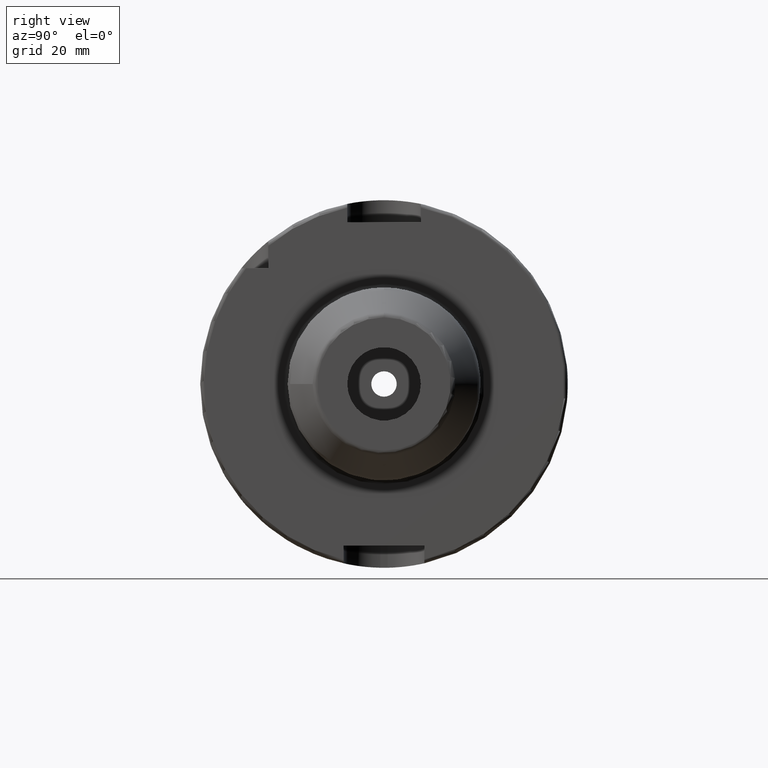
[diagram: clean part render]
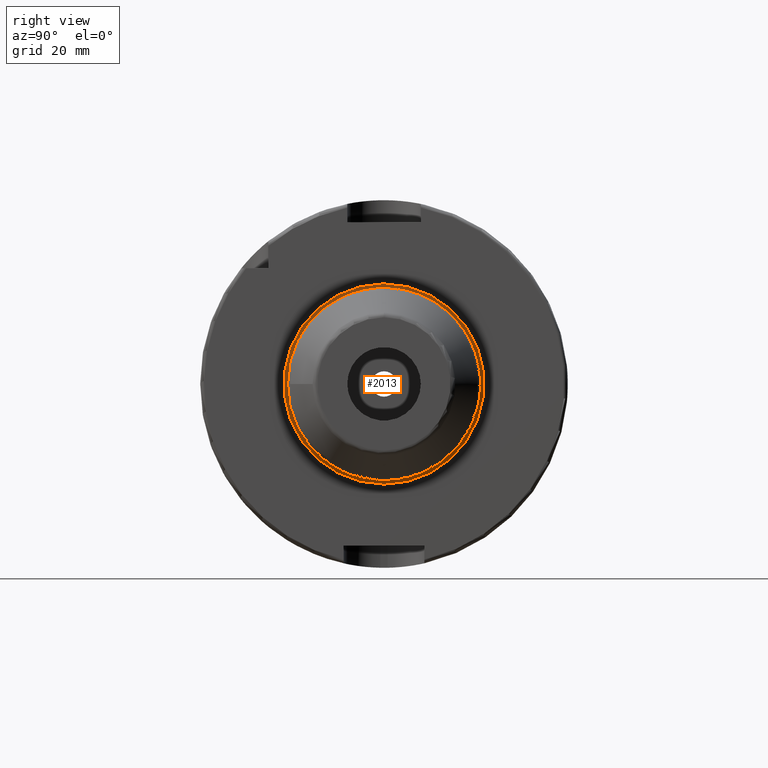
[diagram: same view with one face highlighted and labeled with its STEP entity id]
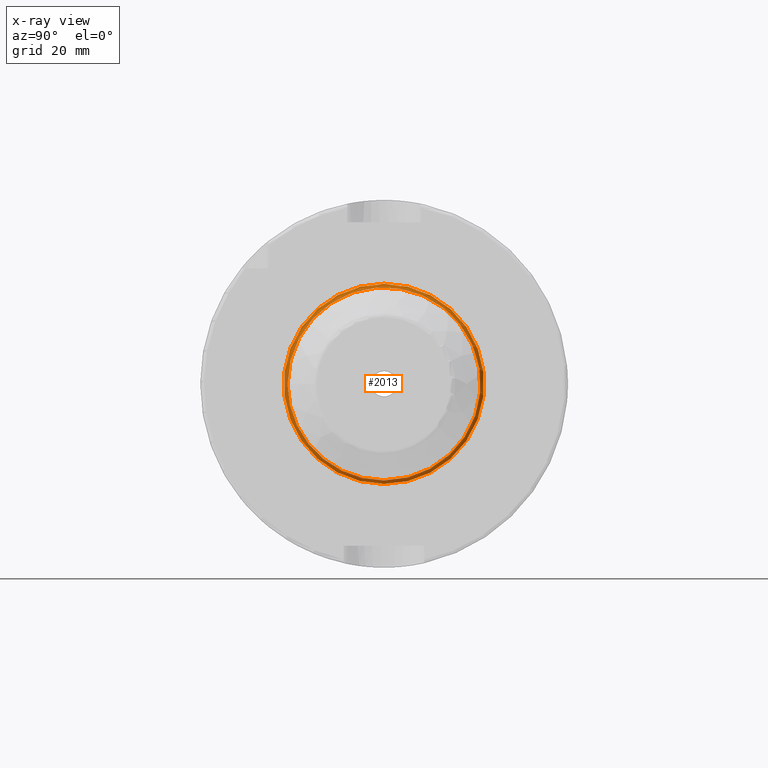
[diagram: x-ray of the same camera — body ghosted, the highlighted face saturated]
A machine part, right view. The second image highlights one B-rep face of the part: STEP entity #2013.
The next image is the same camera in x-ray: the body ghosted, the highlighted face saturated — about 8% of this face is hidden behind the body in this view.
In plain terms, the highlighted toroidal blend (fillet) surface has major radius 27.25 mm and minor (blend) radius 1 mm.
Its self-contained STEP definition (entity closure, byte-faithful):
#162=TOROIDAL_SURFACE('',#2171,27.25,1.);
#192=FACE_OUTER_BOUND('',#315,.T.);
#315=EDGE_LOOP('',(#1353,#1354,#1355,#1356,#1357));
#672=CIRCLE('',#2172,26.25);
#673=CIRCLE('',#2173,1.);
#674=CIRCLE('',#2174,27.25);
#675=CIRCLE('',#2175,26.25);
#807=VERTEX_POINT('',#3093);
#808=VERTEX_POINT('',#3094);
#809=VERTEX_POINT('',#3096);
#1019=EDGE_CURVE('',#807,#808,#672,.T.);
#1020=EDGE_CURVE('',#808,#809,#673,.T.);
#1021=EDGE_CURVE('',#809,#809,#674,.T.);
#1022=EDGE_CURVE('',#808,#807,#675,.T.);
#1353=ORIENTED_EDGE('',*,*,#1019,.T.);
#1354=ORIENTED_EDGE('',*,*,#1020,.T.);
#1355=ORIENTED_EDGE('',*,*,#1021,.T.);
#1356=ORIENTED_EDGE('',*,*,#1020,.F.);
#1357=ORIENTED_EDGE('',*,*,#1022,.T.);
#2013=ADVANCED_FACE('',(#192),#162,.F.);
#2171=AXIS2_PLACEMENT_3D('',#3092,#2460,#2461);
#2172=AXIS2_PLACEMENT_3D('',#3095,#2462,#2463);
#2173=AXIS2_PLACEMENT_3D('',#3097,#2464,#2465);
#2174=AXIS2_PLACEMENT_3D('',#3098,#2466,#2467);
#2175=AXIS2_PLACEMENT_3D('',#3099,#2468,#2469);
#2460=DIRECTION('center_axis',(-1.,0.,0.));
#2461=DIRECTION('ref_axis',(0.,0.,1.));
#2462=DIRECTION('center_axis',(-1.,0.,0.));
#2463=DIRECTION('ref_axis',(0.,-1.,-1.22464679914735E-16));
#2464=DIRECTION('center_axis',(0.,-1.,1.22464679914735E-16));
#2465=DIRECTION('ref_axis',(0.,-1.22464679914735E-16,-1.));
#2466=DIRECTION('center_axis',(1.,0.,0.));
#2467=DIRECTION('ref_axis',(0.,-1.,-1.22464679914735E-16));
#2468=DIRECTION('center_axis',(-1.,0.,0.));
#2469=DIRECTION('ref_axis',(0.,-1.,-1.22464679914735E-16));
#3092=CARTESIAN_POINT('Origin',(30.,0.,0.));
#3093=CARTESIAN_POINT('',(30.,-26.25,-3.2146978477618E-15));
#3094=CARTESIAN_POINT('',(30.,-3.2146978477618E-15,-26.25));
#3095=CARTESIAN_POINT('Origin',(30.,0.,0.));
#3096=CARTESIAN_POINT('',(29.,-3.33716252767654E-15,-27.25));
#3097=CARTESIAN_POINT('Origin',(30.,-3.33716252767654E-15,-27.25));
#3098=CARTESIAN_POINT('Origin',(29.,0.,0.));
#3099=CARTESIAN_POINT('Origin',(30.,0.,0.));